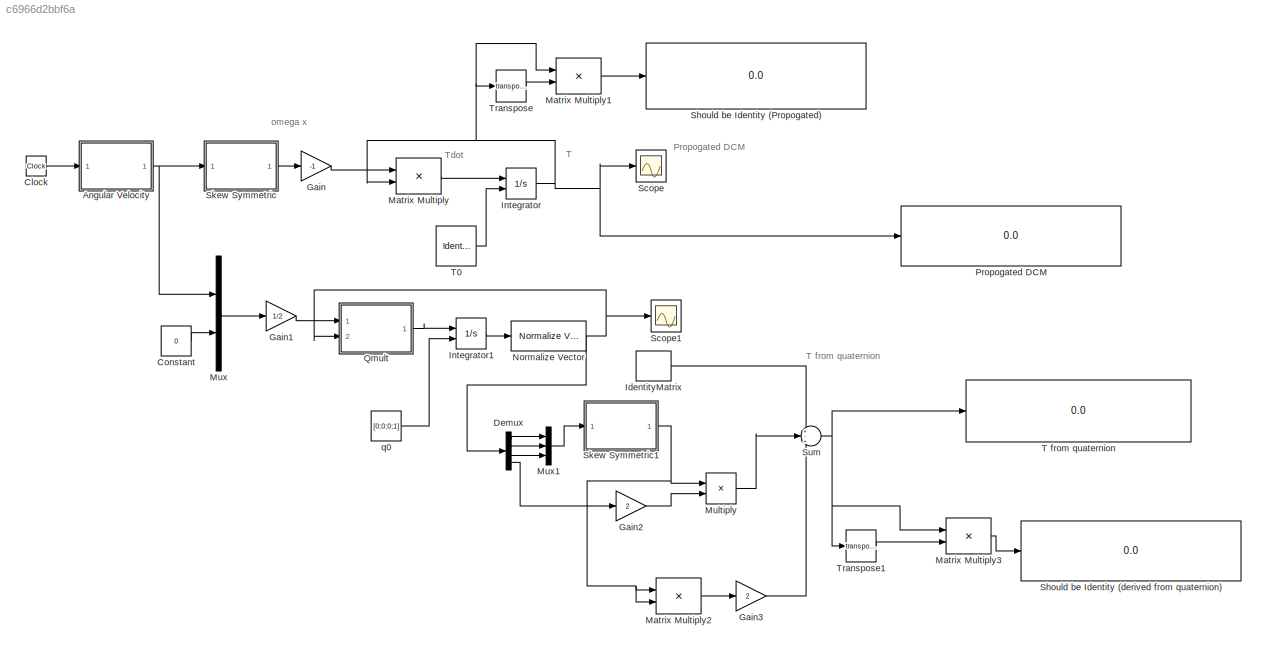
MODEL slx_c6966d2bbf6a
KIND model
CONFIG AbsTol = auto
CONFIG EnableMultiTasking = off
CONFIG FixedStep = auto
CONFIG MaxStep = auto
CONFIG MinStep = auto
CONFIG RelTol = 1e-3
CONFIG SampleTimeConstraint = Unconstrained
CONFIG SolverName = VariableStepAuto
CONFIG StartTime = 0.0
CONFIG StopTime = 1800.0
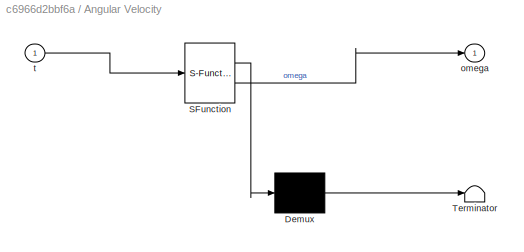
BLOCK [SubSystem] Angular Velocity
  ErrorFcn = Stateflow.Translate.translate
  PermitHierarchicalResolution = ExplicitOnly
  Ports = [1, 1]
  RequestExecContextInheritance = off
  SFBlockType = MATLAB Function
  TreatAsAtomicUnit = on
BLOCK [Demux] Angular Velocity/ Demux 
  Outputs = 1
  Ports = [1, 1]
BLOCK [S-Function] Angular Velocity/ SFunction 
  EnableBusSupport = on
  FunctionName = sf_sfun
  PortCounts = [1 2]
  Ports = [1, 2]
  SFcnIsStateOwnerBlock = off
  SFunctionDeploymentMode = off
  Tag = Stateflow S-Function 3
BLOCK [Terminator] Angular Velocity/ Terminator 
BLOCK [Outport] Angular Velocity/omega
BLOCK [Inport] Angular Velocity/t
BLOCK [Clock] Clock
BLOCK [Constant] Constant
  Value = 0
BLOCK [Demux] Demux
  Ports = [1, 4]
BLOCK [Gain] Gain
  Gain = -1
BLOCK [Gain] Gain1
  Gain = 1/2
BLOCK [Gain] Gain2
  Gain = 2
BLOCK [Gain] Gain3
  Gain = 2
BLOCK [IdentityMatrix] IdentityMatrix
  OutputDimensions = 3
  Ports = [0, 1]
BLOCK [Integrator] Integrator
  InitialConditionSource = external
  Ports = [2, 1]
BLOCK [Integrator] Integrator1
  InitialConditionSource = external
  Ports = [2, 1]
BLOCK [Product] Matrix Multiply
  Multiplication = Matrix(*)
  Ports = [2, 1]
BLOCK [Product] Matrix Multiply1
  Multiplication = Matrix(*)
  Ports = [2, 1]
BLOCK [Product] Matrix Multiply2
  Multiplication = Matrix(*)
  Ports = [2, 1]
BLOCK [Product] Matrix Multiply3
  Multiplication = Matrix(*)
  Ports = [2, 1]
BLOCK [Product] Multiply
  Inputs = **
  Ports = [2, 1]
BLOCK [Mux] Mux
  DisplayOption = bar
  Inputs = 2
  Ports = [2, 1]
BLOCK [Mux] Mux1
  DisplayOption = bar
  Inputs = 3
  Ports = [3, 1]
BLOCK [Reference] Normalize Vector  REF=vrlib/Utilities/Normalize Vector
  Ports = [1, 1]
  SourceBlock = vrlib/Utilities/Normalize Vector
  SourceProductBaseCode = SL
  SourceType = Normalize Vector
BLOCK [Display] Propogated DCM
  Decimation = 1
  Ports = [1]
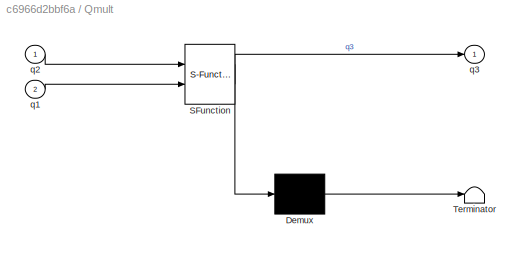
BLOCK [SubSystem] Qmult
  ErrorFcn = Stateflow.Translate.translate
  PermitHierarchicalResolution = ExplicitOnly
  Ports = [2, 1]
  RequestExecContextInheritance = off
  SFBlockType = MATLAB Function
  TreatAsAtomicUnit = on
BLOCK [Demux] Qmult/ Demux 
  Outputs = 1
  Ports = [1, 1]
BLOCK [S-Function] Qmult/ SFunction 
  EnableBusSupport = on
  FunctionName = sf_sfun
  PortCounts = [2 2]
  Ports = [2, 2]
  SFcnIsStateOwnerBlock = off
  SFunctionDeploymentMode = off
  Tag = Stateflow S-Function 4
BLOCK [Terminator] Qmult/ Terminator 
BLOCK [Inport] Qmult/q1
  Port = 2
BLOCK [Inport] Qmult/q2
BLOCK [Outport] Qmult/q3
BLOCK [Scope] Scope
  Floating = off
  NumInputPorts = 1
  Ports = [1]
  ScopeSpecificationString = Simulink.scopes.TimeScopeBlockCfg('CurrentConfiguration', extmgr.ConfigurationSet(extmgr.Configuration('Core','General UI',true),extmgr.Configuration('Core','Source UI',true),extmgr.Configuration('Sources','WiredSimulink',true),extmgr.Configuration('Visuals','Time Domain',true,'SerializedDisplays',{struct('MinYLimReal','-0.64636','MaxYLimReal','1.18293','YLabelReal','','MinYLimMag','0.00000','MaxY...<+1483ch>
BLOCK [Scope] Scope1
  Floating = off
  NumInputPorts = 1
  Ports = [1]
  ScopeSpecificationString = Simulink.scopes.TimeScopeBlockCfg('CurrentConfiguration', extmgr.ConfigurationSet(extmgr.Configuration('Core','General UI',true),extmgr.Configuration('Core','Source UI',true),extmgr.Configuration('Sources','WiredSimulink',true,'DataLoggingVariableName','ScopeData1'),extmgr.Configuration('Visuals','Time Domain',true,'SerializedDisplays',{struct('MinYLimReal','-0.37583','MaxYLimReal','1.15287','YLab...<+1440ch>
BLOCK [Display] Should be Identity (Propogated)
  Decimation = 1
  Ports = [1]
BLOCK [Display] Should be Identity (derived from quaternion)
  Decimation = 1
  Ports = [1]
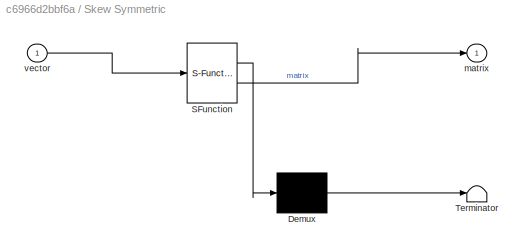
BLOCK [SubSystem] Skew Symmetric
  ErrorFcn = Stateflow.Translate.translate
  PermitHierarchicalResolution = ExplicitOnly
  Ports = [1, 1]
  RequestExecContextInheritance = off
  SFBlockType = MATLAB Function
  TreatAsAtomicUnit = on
BLOCK [Demux] Skew Symmetric/ Demux 
  Outputs = 1
  Ports = [1, 1]
BLOCK [S-Function] Skew Symmetric/ SFunction 
  EnableBusSupport = on
  FunctionName = sf_sfun
  PortCounts = [1 2]
  Ports = [1, 2]
  SFcnIsStateOwnerBlock = off
  SFunctionDeploymentMode = off
  Tag = Stateflow S-Function 2
BLOCK [Terminator] Skew Symmetric/ Terminator 
BLOCK [Outport] Skew Symmetric/matrix
BLOCK [Inport] Skew Symmetric/vector
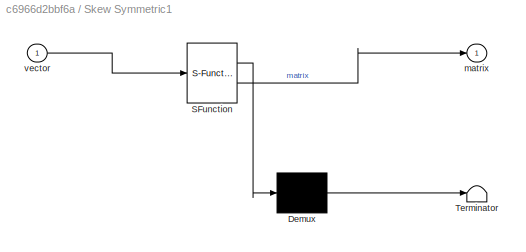
BLOCK [SubSystem] Skew Symmetric1
  ErrorFcn = Stateflow.Translate.translate
  PermitHierarchicalResolution = ExplicitOnly
  Ports = [1, 1]
  RequestExecContextInheritance = off
  SFBlockType = MATLAB Function
  TreatAsAtomicUnit = on
BLOCK [Demux] Skew Symmetric1/ Demux 
  Outputs = 1
  Ports = [1, 1]
BLOCK [S-Function] Skew Symmetric1/ SFunction 
  EnableBusSupport = on
  FunctionName = sf_sfun
  PortCounts = [1 2]
  Ports = [1, 2]
  SFcnIsStateOwnerBlock = off
  SFunctionDeploymentMode = off
  Tag = Stateflow S-Function 1
BLOCK [Terminator] Skew Symmetric1/ Terminator 
BLOCK [Outport] Skew Symmetric1/matrix
BLOCK [Inport] Skew Symmetric1/vector
BLOCK [Sum] Sum
  Inputs = +-+
  Ports = [3, 1]
BLOCK [Display] T from quaternion
  Decimation = 1
  Ports = [1]
BLOCK [IdentityMatrix] T0
  OutputDimensions = 3
  Ports = [0, 1]
BLOCK [Math] Transpose
  Operator = transpose
  Ports = [1, 1]
BLOCK [Math] Transpose1
  Operator = transpose
  Ports = [1, 1]
BLOCK [Constant] q0
  Value = [0;0;0;1]
ANNOTATION (root): Propogated DCM
ANNOTATION (root): T
ANNOTATION (root): T from quaternion
ANNOTATION (root): Tdot
ANNOTATION (root): omega x
NET Angular Velocity:1 -> Mux:1, Skew Symmetric:1
LINE Clock:1 -> Angular Velocity:1
LINE Constant:1 -> Mux:2
LINE Demux:1 -> Mux1:1
LINE Demux:2 -> Mux1:2
LINE Demux:3 -> Mux1:3
LINE Demux:4 -> Gain2:1
LINE Gain1:1 -> Qmult:1
LINE Gain2:1 -> Multiply:2
LINE Gain3:1 -> Sum:3
LINE Gain:1 -> Matrix Multiply:1
LINE IdentityMatrix:1 -> Sum:1
LINE Integrator1:1 -> Normalize Vector:1
NET Integrator:1 -> Matrix Multiply1:1, Matrix Multiply:2, Propogated DCM:1, Scope:1, Transpose:1
LINE Matrix Multiply1:1 -> Should be Identity (Propogated):1
LINE Matrix Multiply2:1 -> Gain3:1
LINE Matrix Multiply3:1 -> Should be Identity (derived from quaternion):1
LINE Matrix Multiply:1 -> Integrator:1
LINE Multiply:1 -> Sum:2
LINE Mux1:1 -> Skew Symmetric1:1
LINE Mux:1 -> Gain1:1
NET Normalize Vector:1 -> Demux:1, Qmult:2, Scope1:1
LINE Qmult:1 -> Integrator1:1
NET Skew Symmetric1:1 -> Matrix Multiply2:1, Matrix Multiply2:2, Multiply:1
LINE Skew Symmetric:1 -> Gain:1
NET Sum:1 -> Matrix Multiply3:1, T from quaternion:1, Transpose1:1
LINE T0:1 -> Integrator:2
LINE Transpose1:1 -> Matrix Multiply3:2
LINE Transpose:1 -> Matrix Multiply1:2
LINE q0:1 -> Integrator1:2
note: NET lines group one-source signal fan-out (src -> all destinations, sorted); 1:1 wires keep LINE
CHART Skew Symmetric states=1 transitions=1
  STATE_LABEL 'eML_blk_kernel()'
  STATE_LABEL 'SCRIPT:\nfunction matrix = skewmatrix(vector)\n\nA = zeros(3,3);\n\nA(1,2) = -vector(3);\nA(1,3) = vector(2);\nA(2,3) = -vector(1);\nA(2,1) = vector(3);\nA(3,1) = -vector(2);\nA(3,2) = vector(1);\n\nmatrix = A;\n'
CHART Angular Velocity states=1 transitions=1
  STATE_LABEL 'eML_blk_kernel()'
  STATE_LABEL 'SCRIPT:\nfunction omega = fcn(t)\n\nomega = (2*pi/300)*[sin(2*pi*t/60); cos(2*pi*t/80); cos(2*pi*t/70)];\n\n\n'
CHART Qmult states=1 transitions=1
  STATE_LABEL 'eML_blk_kernel()'
  STATE_LABEL 'SCRIPT:\nfunction q3 = qmult(q2,q1)\n\nq3 = [q2(4).*q1(1:3) + q1(4).*q2(1:3) - cross(q2(1:3),q1(1:3));\n    q2(4)*q1(4) - dot(q2(1:3),q1(1:3))];\n'
CHART Skew Symmetric1 states=1 transitions=1
  STATE_LABEL 'eML_blk_kernel()'
  STATE_LABEL 'SCRIPT:\nfunction matrix = skewmatrix(vector)\n\nA = zeros(3,3);\n\nA(1,2) = -vector(3);\nA(1,3) = vector(2);\nA(2,3) = -vector(1);\nA(2,1) = vector(3);\nA(3,1) = -vector(2);\nA(3,2) = vector(1);\n\nmatrix = A;\n'
CHART  states=0 transitions=0
CHART  states=0 transitions=0
CHART  states=0 transitions=0
CHART  states=0 transitions=0
